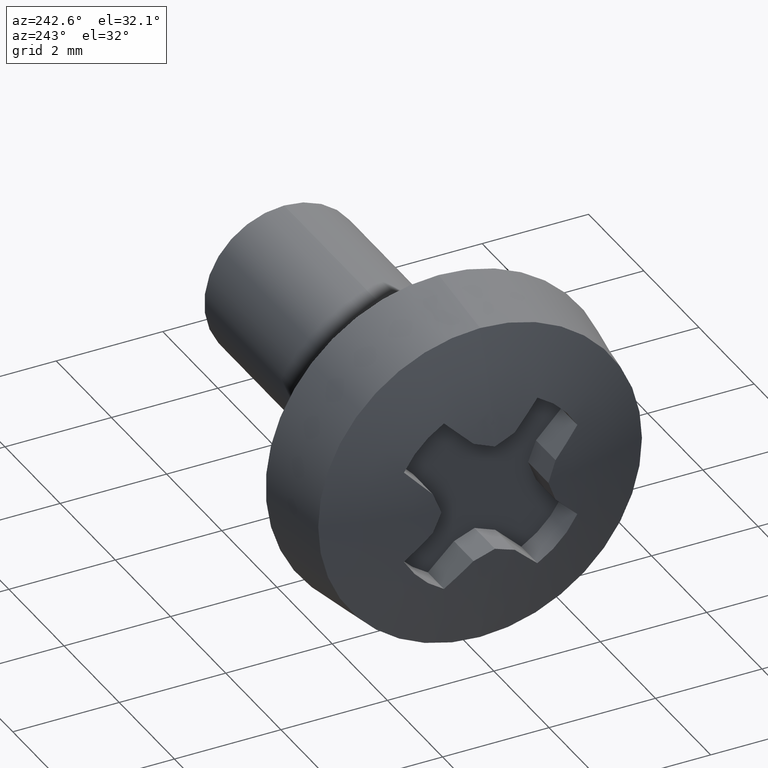
[diagram: clean part render]
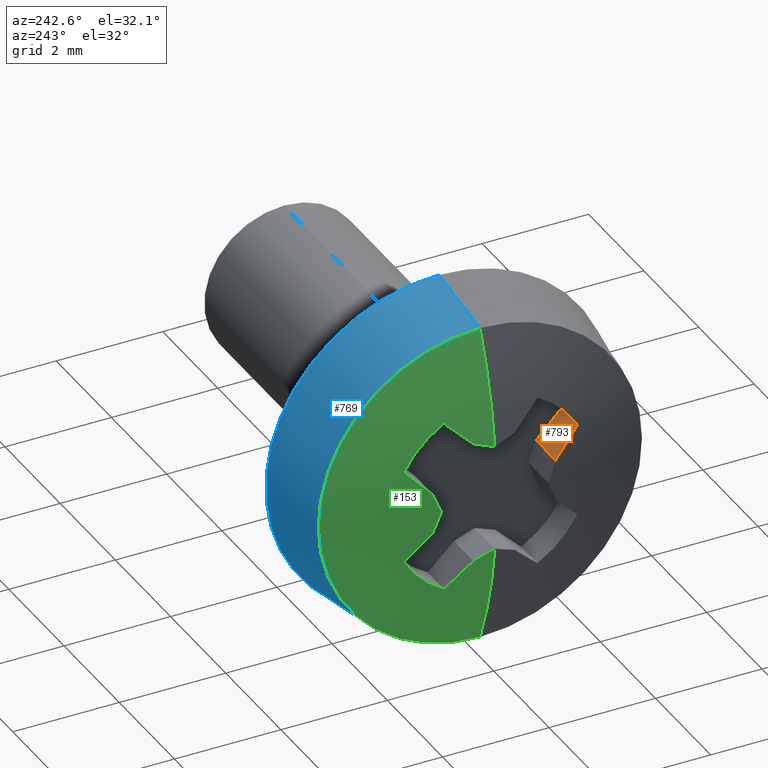
[diagram: same view with three faces highlighted in distinct colors, each labeled with its STEP entity id]
A machine part, auxiliary view with three faces highlighted in distinct colors.
Their STEP definitions:

[orange] entity #793 — the highlighted planar face has unit normal (0, 0.7193, 0.6947).
#19 = EDGE_CURVE ( 'NONE', #77, #107, #1098, .T. ) ;
#23 = EDGE_LOOP ( 'NONE', ( #515, #1036, #131, #362 ) ) ;
#66 = CARTESIAN_POINT ( 'NONE',  ( -1.300000000000000300, -1.628450527808803100, 0.8778660937063692500 ) ) ;
#73 = DIRECTION ( 'NONE',  ( -1.000000000000000000, 0.0000000000000000000, 0.0000000000000000000 ) ) ;
#77 = VERTEX_POINT ( 'NONE', #1205 ) ;
#104 = CARTESIAN_POINT ( 'NONE',  ( -1.883802146954358200, -1.628450527808803100, 0.8778660937063692500 ) ) ;
#107 = VERTEX_POINT ( 'NONE', #863 ) ;
#131 = ORIENTED_EDGE ( 'NONE', *, *, #1026, .T. ) ;
#168 = VERTEX_POINT ( 'NONE', #755 ) ;
#250 = CARTESIAN_POINT ( 'NONE',  ( -1.300000000000000300, -1.154250712796083300, 0.3868178104665169200 ) ) ;
#264 = DIRECTION ( 'NONE',  ( -0.0000000000000000000, 0.6946583704587767600, -0.7193398003388641300 ) ) ;
#333 = CARTESIAN_POINT ( 'NONE',  ( -1.300000000000000300, -1.154250712796083300, 0.3868178104665169200 ) ) ;
#362 = ORIENTED_EDGE ( 'NONE', *, *, #19, .F. ) ;
#373 = CARTESIAN_POINT ( 'NONE',  ( -1.934908468780979900, -1.471631022616671300, 0.7154747422861801300 ) ) ;
#493 = LINE ( 'NONE', #66, #999 ) ;
#515 = ORIENTED_EDGE ( 'NONE', *, *, #773, .F. ) ;
#615 = DIRECTION ( 'NONE',  ( 0.0000000000000000000, -0.6946583704587767600, 0.7193398003388641300 ) ) ;
#624 = EDGE_CURVE ( 'NONE', #1120, #168, #1044, .T. ) ;
#707 = LINE ( 'NONE', #333, #1211 ) ;
#733 = CARTESIAN_POINT ( 'NONE',  ( -1.300000000000000300, -1.154250712796083300, 0.3868178104665169200 ) ) ;
#755 = CARTESIAN_POINT ( 'NONE',  ( -1.300000000000000300, -1.154250712796083300, 0.3868178104665169200 ) ) ;
#773 = EDGE_CURVE ( 'NONE', #1120, #77, #493, .T. ) ;
#793 = ADVANCED_FACE ( 'NONE', ( #1194 ), #1011, .T. ) ;
#807 = DIRECTION ( 'NONE',  ( -1.000000000000000000, 0.0000000000000000000, 0.0000000000000000000 ) ) ;
#859 = AXIS2_PLACEMENT_3D ( 'NONE', #733, #1040, #615 ) ;
#863 = CARTESIAN_POINT ( 'NONE',  ( -2.007366982563980200, -1.154250712796083300, 0.3868178104665169200 ) ) ;
#999 = VECTOR ( 'NONE', #73, 1000.000000000000000 ) ;
#1011 = PLANE ( 'NONE',  #859 ) ;
#1015 = VECTOR ( 'NONE', #264, 1000.000000000000100 ) ;
#1026 = EDGE_CURVE ( 'NONE', #168, #107, #707, .T. ) ;
#1036 = ORIENTED_EDGE ( 'NONE', *, *, #624, .T. ) ;
#1040 = DIRECTION ( 'NONE',  ( 0.0000000000000000000, 0.7193398003388641300, 0.6946583704587767600 ) ) ;
#1044 = LINE ( 'NONE', #250, #1015 ) ;
#1056 = CARTESIAN_POINT ( 'NONE',  ( -1.976094858441079800, -1.313564180104146400, 0.5517917352592002200 ) ) ;
#1098 = B_SPLINE_CURVE_WITH_KNOTS ( 'NONE', 3,
 ( #104, #373, #1056, #1159 ),
 .UNSPECIFIED., .F., .F.,
 ( 4, 4 ),
 ( 2.847987763053888500E-007, 0.0006940154018421357100 ),
 .UNSPECIFIED. ) ;
#1120 = VERTEX_POINT ( 'NONE', #1171 ) ;
#1159 = CARTESIAN_POINT ( 'NONE',  ( -2.007366982563980200, -1.154250712796083300, 0.3868178104665169200 ) ) ;
#1171 = CARTESIAN_POINT ( 'NONE',  ( -1.300000000000000300, -1.628450527808803100, 0.8778660937063692500 ) ) ;
#1194 = FACE_OUTER_BOUND ( 'NONE', #23, .T. ) ;
#1205 = CARTESIAN_POINT ( 'NONE',  ( -1.883802146954358200, -1.628450527808803100, 0.8778660937063692500 ) ) ;
#1211 = VECTOR ( 'NONE', #807, 1000.000000000000000 ) ;

[blue] entity #769 — the highlighted conical surface has half-angle 7.93 deg.
#38 = ORIENTED_EDGE ( 'NONE', *, *, #712, .F. ) ;
#59 = EDGE_CURVE ( 'NONE', #244, #206, #917, .T. ) ;
#86 = CARTESIAN_POINT ( 'NONE',  ( 0.0000000000000000000, 0.0000000000000000000, 0.0000000000000000000 ) ) ;
#98 = CARTESIAN_POINT ( 'NONE',  ( -1.499999999999716900, 0.0000000000000000000, 0.0000000000000000000 ) ) ;
#103 = EDGE_CURVE ( 'NONE', #868, #1054, #577, .T. ) ;
#109 = CARTESIAN_POINT ( 'NONE',  ( 0.0000000000000000000, 0.0000000000000000000, 0.0000000000000000000 ) ) ;
#118 = EDGE_CURVE ( 'NONE', #206, #1054, #434, .T. ) ;
#137 = VECTOR ( 'NONE', #552, 999.9999999999998900 ) ;
#171 = LINE ( 'NONE', #381, #137 ) ;
#179 = CARTESIAN_POINT ( 'NONE',  ( -1.499999999999716900, 3.724207365802925200E-016, 3.041046094593039800 ) ) ;
#199 = CARTESIAN_POINT ( 'NONE',  ( 0.0000000000000000000, 0.0000000000000000000, -3.250000000000002200 ) ) ;
#206 = VERTEX_POINT ( 'NONE', #179 ) ;
#239 = CONICAL_SURFACE ( 'NONE', #606, 3.250000000000002200, 0.1384118858968811600 ) ;
#244 = VERTEX_POINT ( 'NONE', #591 ) ;
#303 = ORIENTED_EDGE ( 'NONE', *, *, #103, .F. ) ;
#357 = FACE_OUTER_BOUND ( 'NONE', #651, .T. ) ;
#364 = DIRECTION ( 'NONE',  ( 1.000000000000000000, -0.0000000000000000000, -0.0000000000000000000 ) ) ;
#381 = CARTESIAN_POINT ( 'NONE',  ( 0.0000000000000000000, 0.0000000000000000000, -3.250000000000002200 ) ) ;
#434 = LINE ( 'NONE', #1050, #1104 ) ;
#462 = DIRECTION ( 'NONE',  ( 0.9904363577930522800, 1.689649638480148500E-017, 0.1379703633452966600 ) ) ;
#552 = DIRECTION ( 'NONE',  ( 0.9904363577930522800, 0.0000000000000000000, -0.1379703633452966600 ) ) ;
#577 = CIRCLE ( 'NONE', #1001, 3.250000000000002200 ) ;
#591 = CARTESIAN_POINT ( 'NONE',  ( -1.499999999999716900, 0.0000000000000000000, -3.041046094593039800 ) ) ;
#606 = AXIS2_PLACEMENT_3D ( 'NONE', #109, #630, #1201 ) ;
#630 = DIRECTION ( 'NONE',  ( 1.000000000000000000, -0.0000000000000000000, -0.0000000000000000000 ) ) ;
#651 = EDGE_LOOP ( 'NONE', ( #753, #998, #303, #38 ) ) ;
#712 = EDGE_CURVE ( 'NONE', #244, #868, #171, .T. ) ;
#753 = ORIENTED_EDGE ( 'NONE', *, *, #59, .T. ) ;
#763 = DIRECTION ( 'NONE',  ( 0.0000000000000000000, 0.0000000000000000000, -1.000000000000000000 ) ) ;
#769 = ADVANCED_FACE ( 'NONE', ( #357 ), #239, .T. ) ;
#868 = VERTEX_POINT ( 'NONE', #199 ) ;
#876 = AXIS2_PLACEMENT_3D ( 'NONE', #98, #1023, #763 ) ;
#917 = CIRCLE ( 'NONE', #876, 3.041046094593039300 ) ;
#998 = ORIENTED_EDGE ( 'NONE', *, *, #118, .T. ) ;
#1001 = AXIS2_PLACEMENT_3D ( 'NONE', #86, #364, #1030 ) ;
#1023 = DIRECTION ( 'NONE',  ( 1.000000000000000000, -0.0000000000000000000, -0.0000000000000000000 ) ) ;
#1030 = DIRECTION ( 'NONE',  ( 0.0000000000000000000, 0.0000000000000000000, -1.000000000000000000 ) ) ;
#1050 = CARTESIAN_POINT ( 'NONE',  ( 0.0000000000000000000, 3.980102097228900200E-016, 3.250000000000002200 ) ) ;
#1054 = VERTEX_POINT ( 'NONE', #1112 ) ;
#1104 = VECTOR ( 'NONE', #462, 999.9999999999998900 ) ;
#1112 = CARTESIAN_POINT ( 'NONE',  ( 0.0000000000000000000, 3.980102097228900200E-016, 3.250000000000002200 ) ) ;
#1201 = DIRECTION ( 'NONE',  ( 0.0000000000000000000, 0.0000000000000000000, -1.000000000000000000 ) ) ;

[green] entity #153 — the highlighted toroidal blend (fillet) surface has major radius 0.0048 mm and minor (blend) radius 7.9824 mm.
#6 = CARTESIAN_POINT ( 'NONE',  ( -2.036991336030685500, 1.053483198554589900E-014, 1.005765267246758300 ) ) ;
#20 = DIRECTION ( 'NONE',  ( 0.0000000000000000000, 0.0000000000000000000, -1.000000000000000000 ) ) ;
#22 = ORIENTED_EDGE ( 'NONE', *, *, #407, .T. ) ;
#29 = AXIS2_PLACEMENT_3D ( 'NONE', #927, #1051, #20 ) ;
#47 = CARTESIAN_POINT ( 'NONE',  ( -2.007366982563980200, 1.154250712796086200, -0.3868178104665088700 ) ) ;
#59 = EDGE_CURVE ( 'NONE', #244, #206, #917, .T. ) ;
#67 = CARTESIAN_POINT ( 'NONE',  ( -1.883802146954371800, 0.8778660937063479400, -1.628450527808814200 ) ) ;
#69 = CARTESIAN_POINT ( 'NONE',  ( -2.036991336030685500, 1.053483198554589900E-014, 1.005765267246758300 ) ) ;
#80 = CARTESIAN_POINT ( 'NONE',  ( -1.934908465970951900, 0.7154747512150858600, 1.471631031239238000 ) ) ;
#98 = CARTESIAN_POINT ( 'NONE',  ( -1.499999999999716900, 0.0000000000000000000, 0.0000000000000000000 ) ) ;
#100 = ORIENTED_EDGE ( 'NONE', *, *, #461, .T. ) ;
#110 = VERTEX_POINT ( 'NONE', #393 ) ;
#114 = ORIENTED_EDGE ( 'NONE', *, *, #1202, .T. ) ;
#123 = EDGE_CURVE ( 'NONE', #207, #464, #438, .T. ) ;
#125 = ORIENTED_EDGE ( 'NONE', *, *, #281, .T. ) ;
#127 = ORIENTED_EDGE ( 'NONE', *, *, #1009, .T. ) ;
#136 = CIRCLE ( 'NONE', #555, 7.982419629731391600 ) ;
#140 = CIRCLE ( 'NONE', #29, 1.850000000000013200 ) ;
#153 = ADVANCED_FACE ( 'NONE', ( #690 ), #370, .T. ) ;
#161 = DIRECTION ( 'NONE',  ( -0.0000000000000000000, -1.000000000000000000, -0.0000000000000000000 ) ) ;
#172 = CARTESIAN_POINT ( 'NONE',  ( -1.883802146954371800, 1.628450527808811300, 0.8778660937063536000 ) ) ;
#178 = VERTEX_POINT ( 'NONE', #877 ) ;
#179 = CARTESIAN_POINT ( 'NONE',  ( -1.499999999999716900, 3.724207365802925200E-016, 3.041046094593039800 ) ) ;
#181 = B_SPLINE_CURVE_WITH_KNOTS ( 'NONE', 3,
 ( #1152, #1131, #829, #172 ),
 .UNSPECIFIED., .F., .F.,
 ( 4, 4 ),
 ( 2.902990933053994100E-007, 0.0006940209021592500300 ),
 .UNSPECIFIED. ) ;
#190 = CARTESIAN_POINT ( 'NONE',  ( -1.934908467387202600, 0.7154747467149457100, -1.471631026893464000 ) ) ;
#197 = EDGE_CURVE ( 'NONE', #798, #519, #140, .T. ) ;
#203 = VERTEX_POINT ( 'NONE', #858 ) ;
#206 = VERTEX_POINT ( 'NONE', #179 ) ;
#207 = VERTEX_POINT ( 'NONE', #470 ) ;
#229 = B_SPLINE_CURVE_WITH_KNOTS ( 'NONE', 3,
 ( #451, #513, #325, #1187 ),
 .UNSPECIFIED., .F., .F.,
 ( 4, 4 ),
 ( 2.143753548912475900E-007, 0.0004156100281396139200 ),
 .UNSPECIFIED. ) ;
#230 = CARTESIAN_POINT ( 'NONE',  ( -2.007366982565540700, 0.3868178104667021100, -1.154250712796146300 ) ) ;
#231 = CARTESIAN_POINT ( 'NONE',  ( -2.020851086425031100, 1.104848044528611700, -0.2581194595961954200 ) ) ;
#233 = CARTESIAN_POINT ( 'NONE',  ( -2.030723629678942800, 0.1291800398399627300, 1.055352838585869000 ) ) ;
#244 = VERTEX_POINT ( 'NONE', #591 ) ;
#247 = DIRECTION ( 'NONE',  ( 0.0000000000000000000, 1.000000000000000000, -1.224646799147353200E-016 ) ) ;
#261 = DIRECTION ( 'NONE',  ( 0.0000000000000000000, 0.0000000000000000000, -1.000000000000000000 ) ) ;
#263 = CARTESIAN_POINT ( 'NONE',  ( 5.882418199830265600, 0.0000000000000000000, 0.0000000000000000000 ) ) ;
#268 = EDGE_CURVE ( 'NONE', #1108, #798, #883, .T. ) ;
#281 = EDGE_CURVE ( 'NONE', #289, #206, #512, .T. ) ;
#289 = VERTEX_POINT ( 'NONE', #6 ) ;
#290 = CARTESIAN_POINT ( 'NONE',  ( -1.883802146954371800, 0.0000000000000000000, 0.0000000000000000000 ) ) ;
#291 = CARTESIAN_POINT ( 'NONE',  ( -2.020851086425031100, 0.2581194595961815400, 1.104848044528608900 ) ) ;
#325 = CARTESIAN_POINT ( 'NONE',  ( -2.020851086425031100, 1.104848044528588900, 0.2581194595962628100 ) ) ;
#329 = CARTESIAN_POINT ( 'NONE',  ( -1.934908468780978100, 1.471631022616675800, -0.7154747422861692500 ) ) ;
#331 = DIRECTION ( 'NONE',  ( 0.0000000000000000000, 1.224646799147353200E-016, 1.000000000000000000 ) ) ;
#349 = CARTESIAN_POINT ( 'NONE',  ( -2.020851086425033300, 0.2581194595962523800, -1.104848044528587300 ) ) ;
#353 = DIRECTION ( 'NONE',  ( 1.000000000000000000, -0.0000000000000000000, -0.0000000000000000000 ) ) ;
#370 = TOROIDAL_SURFACE ( 'NONE', #1192, 0.004777880495332540600, 7.982419629731391600 ) ;
#388 = CARTESIAN_POINT ( 'NONE',  ( -2.030723629678951300, 0.1291800398400114200, -1.055352838585806900 ) ) ;
#393 = CARTESIAN_POINT ( 'NONE',  ( -2.036991336030687300, -3.511610661848633000E-015, -1.005765267246758300 ) ) ;
#395 = DIRECTION ( 'NONE',  ( 0.0000000000000000000, 0.0000000000000000000, -1.000000000000000000 ) ) ;
#397 = ORIENTED_EDGE ( 'NONE', *, *, #1111, .F. ) ;
#398 = ORIENTED_EDGE ( 'NONE', *, *, #197, .T. ) ;
#407 = EDGE_CURVE ( 'NONE', #1075, #178, #971, .T. ) ;
#425 = AXIS2_PLACEMENT_3D ( 'NONE', #290, #639, #534 ) ;
#438 = B_SPLINE_CURVE_WITH_KNOTS ( 'NONE', 3,
 ( #1043, #80, #1156, #672 ),
 .UNSPECIFIED., .F., .F.,
 ( 4, 4 ),
 ( 2.949178166988731400E-007, 0.0006940255208822763500 ),
 .UNSPECIFIED. ) ;
#451 = CARTESIAN_POINT ( 'NONE',  ( -2.036991336030682800, 1.005765267246872700, -3.891081422218959100E-015 ) ) ;
#461 = EDGE_CURVE ( 'NONE', #519, #1075, #1047, .T. ) ;
#464 = VERTEX_POINT ( 'NONE', #674 ) ;
#466 = CARTESIAN_POINT ( 'NONE',  ( -2.030723629678943300, 1.055352838585876100, -0.1291800398399864100 ) ) ;
#470 = CARTESIAN_POINT ( 'NONE',  ( -1.883802146954359800, 0.8778660937063521600, 1.628450527808812200 ) ) ;
#512 = CIRCLE ( 'NONE', #518, 7.982419629731391600 ) ;
#513 = CARTESIAN_POINT ( 'NONE',  ( -2.030723629678951300, 1.055352838585814400, 0.1291800398400361200 ) ) ;
#518 = AXIS2_PLACEMENT_3D ( 'NONE', #874, #247, #331 ) ;
#519 = VERTEX_POINT ( 'NONE', #865 ) ;
#526 = CARTESIAN_POINT ( 'NONE',  ( -2.036991336030682800, 1.005765267246872700, -3.891081422218959100E-015 ) ) ;
#531 = B_SPLINE_CURVE_WITH_KNOTS ( 'NONE', 3,
 ( #965, #291, #233, #69 ),
 .UNSPECIFIED., .F., .F.,
 ( 4, 4 ),
 ( 2.151781294736638800E-007, 0.0004156108309141353600 ),
 .UNSPECIFIED. ) ;
#534 = DIRECTION ( 'NONE',  ( 0.0000000000000000000, 0.0000000000000000000, -1.000000000000000000 ) ) ;
#544 = CIRCLE ( 'NONE', #425, 1.850000000000013200 ) ;
#555 = AXIS2_PLACEMENT_3D ( 'NONE', #820, #161, #261 ) ;
#557 = ORIENTED_EDGE ( 'NONE', *, *, #59, .F. ) ;
#572 = ORIENTED_EDGE ( 'NONE', *, *, #884, .T. ) ;
#587 = ORIENTED_EDGE ( 'NONE', *, *, #610, .T. ) ;
#591 = CARTESIAN_POINT ( 'NONE',  ( -1.499999999999716900, 0.0000000000000000000, -3.041046094593039800 ) ) ;
#600 = CARTESIAN_POINT ( 'NONE',  ( -1.976094858441079800, 1.313564180104150200, -0.5517917352591907900 ) ) ;
#610 = EDGE_CURVE ( 'NONE', #203, #207, #544, .T. ) ;
#639 = DIRECTION ( 'NONE',  ( 1.000000000000000000, -0.0000000000000000000, -0.0000000000000000000 ) ) ;
#649 = CARTESIAN_POINT ( 'NONE',  ( -1.883802146954360000, 1.628450527808809100, -0.8778660937063578200 ) ) ;
#664 = ORIENTED_EDGE ( 'NONE', *, *, #123, .T. ) ;
#672 = CARTESIAN_POINT ( 'NONE',  ( -2.007366982563981900, 0.3868178104665048700, 1.154250712796087500 ) ) ;
#674 = CARTESIAN_POINT ( 'NONE',  ( -2.007366982563981900, 0.3868178104665048700, 1.154250712796087500 ) ) ;
#688 = CARTESIAN_POINT ( 'NONE',  ( -2.007366982565540700, 0.3868178104667021100, -1.154250712796146300 ) ) ;
#690 = FACE_OUTER_BOUND ( 'NONE', #1210, .T. ) ;
#727 = VERTEX_POINT ( 'NONE', #980 ) ;
#731 = CARTESIAN_POINT ( 'NONE',  ( -2.036991336030687300, -3.511610661848633000E-015, -1.005765267246758300 ) ) ;
#734 = EDGE_CURVE ( 'NONE', #110, #1108, #1154, .T. ) ;
#749 = ORIENTED_EDGE ( 'NONE', *, *, #268, .T. ) ;
#750 = CARTESIAN_POINT ( 'NONE',  ( -1.883802146954371800, 0.8778660937063479400, -1.628450527808814200 ) ) ;
#763 = DIRECTION ( 'NONE',  ( 0.0000000000000000000, 0.0000000000000000000, -1.000000000000000000 ) ) ;
#798 = VERTEX_POINT ( 'NONE', #67 ) ;
#820 = CARTESIAN_POINT ( 'NONE',  ( 5.882418199830265600, 0.0000000000000000000, -0.004777880495332540600 ) ) ;
#829 = CARTESIAN_POINT ( 'NONE',  ( -1.934908468780989900, 1.471631022616627600, 0.7154747422861598100 ) ) ;
#830 = ORIENTED_EDGE ( 'NONE', *, *, #734, .T. ) ;
#858 = CARTESIAN_POINT ( 'NONE',  ( -1.883802146954371800, 1.628450527808811300, 0.8778660937063536000 ) ) ;
#865 = CARTESIAN_POINT ( 'NONE',  ( -1.883802146954360000, 1.628450527808809100, -0.8778660937063578200 ) ) ;
#874 = CARTESIAN_POINT ( 'NONE',  ( 5.882418199830265600, 5.851216055317566200E-019, 0.004777880495332540600 ) ) ;
#876 = AXIS2_PLACEMENT_3D ( 'NONE', #98, #1023, #763 ) ;
#877 = CARTESIAN_POINT ( 'NONE',  ( -2.036991336030682800, 1.005765267246872700, -3.891081422218959100E-015 ) ) ;
#883 = B_SPLINE_CURVE_WITH_KNOTS ( 'NONE', 3,
 ( #688, #938, #190, #750 ),
 .UNSPECIFIED., .F., .F.,
 ( 4, 4 ),
 ( 2.803385996579405500E-007, 0.0006940109416655947900 ),
 .UNSPECIFIED. ) ;
#884 = EDGE_CURVE ( 'NONE', #727, #203, #181, .T. ) ;
#917 = CIRCLE ( 'NONE', #876, 3.041046094593039300 ) ;
#927 = CARTESIAN_POINT ( 'NONE',  ( -1.883802146954371800, 0.0000000000000000000, 0.0000000000000000000 ) ) ;
#938 = CARTESIAN_POINT ( 'NONE',  ( -1.976094857588393000, 0.5517917397575442500, -1.313564184448080500 ) ) ;
#965 = CARTESIAN_POINT ( 'NONE',  ( -2.007366982563981900, 0.3868178104665048700, 1.154250712796087500 ) ) ;
#971 = B_SPLINE_CURVE_WITH_KNOTS ( 'NONE', 3,
 ( #47, #231, #466, #526 ),
 .UNSPECIFIED., .F., .F.,
 ( 4, 4 ),
 ( 2.151781294735629300E-007, 0.0004156108309141036000 ),
 .UNSPECIFIED. ) ;
#980 = CARTESIAN_POINT ( 'NONE',  ( -2.007366982565655700, 1.154250712796145200, 0.3868178104667061600 ) ) ;
#1009 = EDGE_CURVE ( 'NONE', #178, #727, #229, .T. ) ;
#1023 = DIRECTION ( 'NONE',  ( 1.000000000000000000, -0.0000000000000000000, -0.0000000000000000000 ) ) ;
#1043 = CARTESIAN_POINT ( 'NONE',  ( -1.883802146954359800, 0.8778660937063521600, 1.628450527808812200 ) ) ;
#1047 = B_SPLINE_CURVE_WITH_KNOTS ( 'NONE', 3,
 ( #649, #329, #600, #1177 ),
 .UNSPECIFIED., .F., .F.,
 ( 4, 4 ),
 ( 2.847987763059154400E-007, 0.0006940154018421355000 ),
 .UNSPECIFIED. ) ;
#1051 = DIRECTION ( 'NONE',  ( 1.000000000000000000, -0.0000000000000000000, -0.0000000000000000000 ) ) ;
#1075 = VERTEX_POINT ( 'NONE', #1092 ) ;
#1092 = CARTESIAN_POINT ( 'NONE',  ( -2.007366982563980200, 1.154250712796086200, -0.3868178104665088700 ) ) ;
#1108 = VERTEX_POINT ( 'NONE', #230 ) ;
#1111 = EDGE_CURVE ( 'NONE', #110, #244, #136, .T. ) ;
#1131 = CARTESIAN_POINT ( 'NONE',  ( -1.976094858441099300, 1.313564180104051800, 0.5517917352591773500 ) ) ;
#1152 = CARTESIAN_POINT ( 'NONE',  ( -2.007366982565655700, 1.154250712796145200, 0.3868178104667061600 ) ) ;
#1154 = B_SPLINE_CURVE_WITH_KNOTS ( 'NONE', 3,
 ( #731, #388, #349, #1198 ),
 .UNSPECIFIED., .F., .F.,
 ( 4, 4 ),
 ( 2.143753548536372100E-007, 0.0004156100281396220500 ),
 .UNSPECIFIED. ) ;
#1156 = CARTESIAN_POINT ( 'NONE',  ( -1.976094856721939900, 0.5517917443283809600, 1.313564188862171400 ) ) ;
#1177 = CARTESIAN_POINT ( 'NONE',  ( -2.007366982563980200, 1.154250712796086200, -0.3868178104665088700 ) ) ;
#1187 = CARTESIAN_POINT ( 'NONE',  ( -2.007366982565655700, 1.154250712796145200, 0.3868178104667061600 ) ) ;
#1192 = AXIS2_PLACEMENT_3D ( 'NONE', #263, #353, #395 ) ;
#1198 = CARTESIAN_POINT ( 'NONE',  ( -2.007366982565540700, 0.3868178104667021100, -1.154250712796146300 ) ) ;
#1202 = EDGE_CURVE ( 'NONE', #464, #289, #531, .T. ) ;
#1210 = EDGE_LOOP ( 'NONE', ( #114, #125, #557, #397, #830, #749, #398, #100, #22, #127, #572, #587, #664 ) ) ;